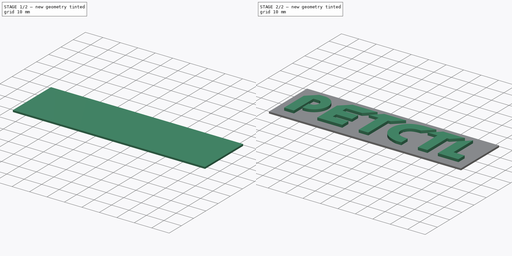
[diagram: build sequence overview — one tinted view per stage of 2, left to right]
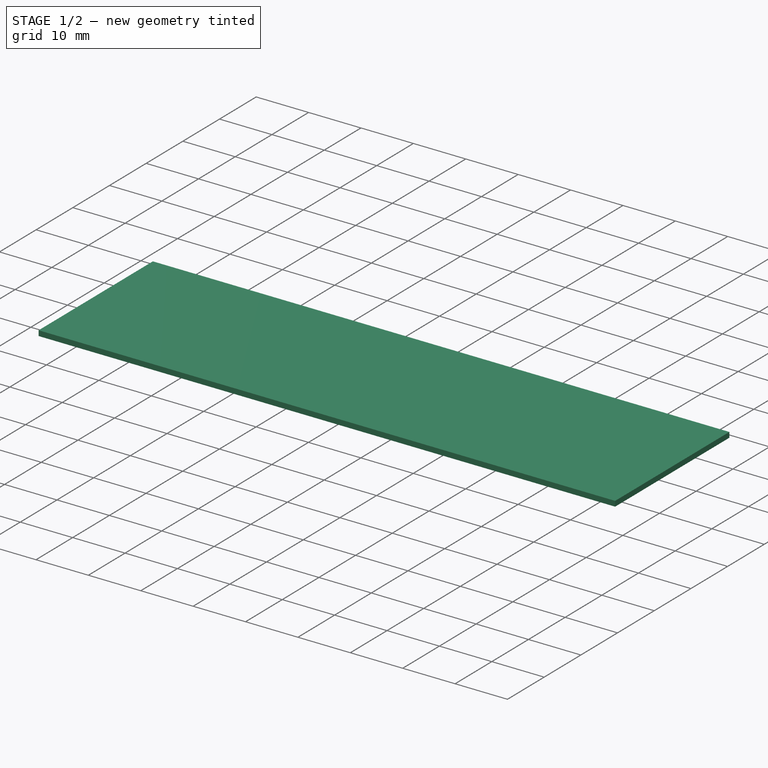
[diagram: stage 1 of 2 — iso view after this stage's code; geometry added in this stage tinted green]
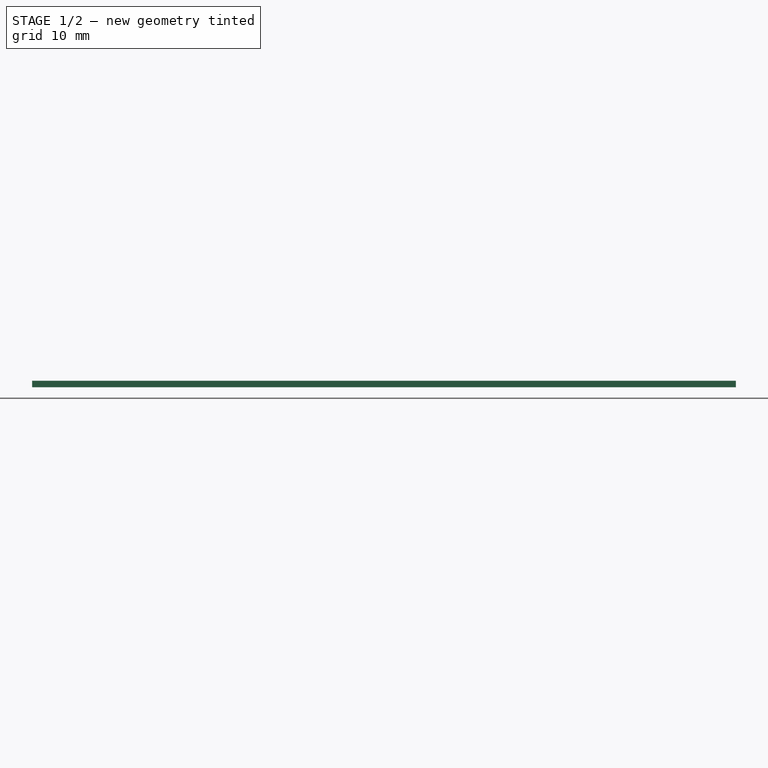
[diagram: stage 1 of 2 — front view after this stage's code; geometry added in this stage tinted green]
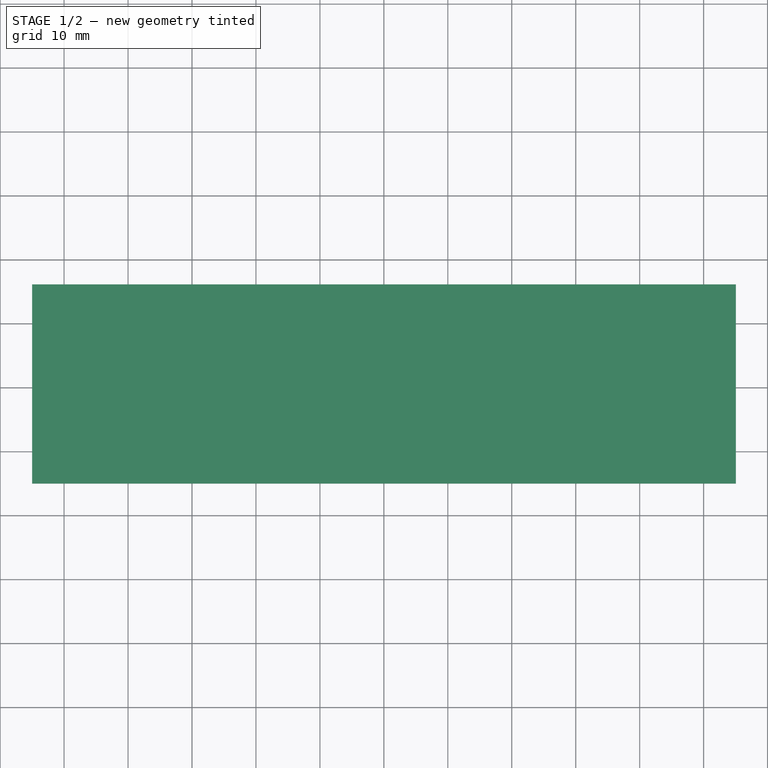
[diagram: stage 1 of 2 — top view after this stage's code; geometry added in this stage tinted green]
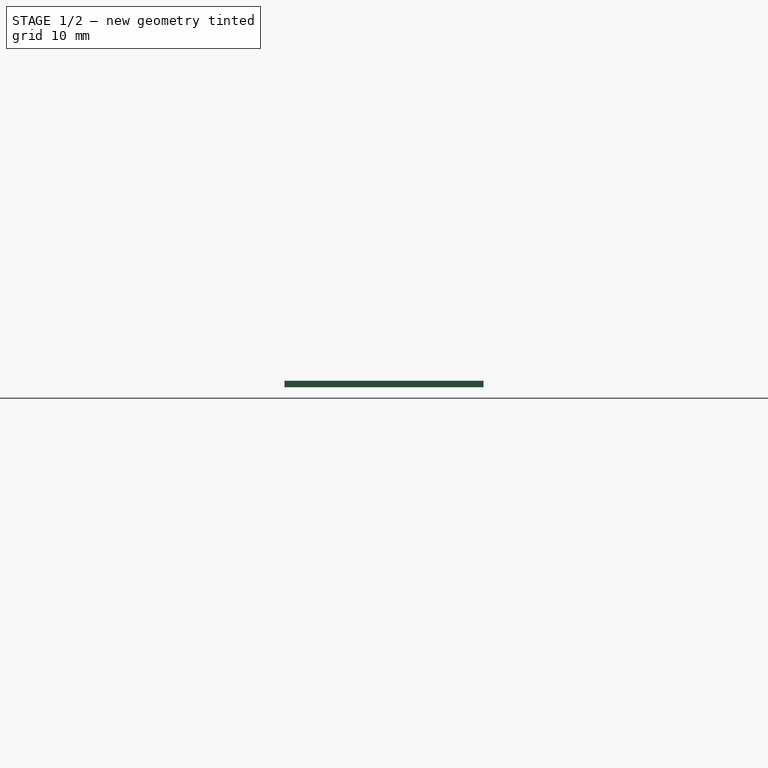
[diagram: stage 1 of 2 — right view after this stage's code; geometry added in this stage tinted green]
FCSTD DOCUMENT  (FreeCAD 0.19R24291 (Git))
Label: PETCTL_logo_V1
License: All rights reserved
LicenseURL: http://en.wikipedia.org/wiki/All_rights_reserved
objects: Sketcher::SketchObject×2, PartDesign::Pad×2, Image::ImagePlane×1, PartDesign::Body×1, App::Part×1, Part::Part2DObjectPython×1
note: 8 computed .brp shape members not serialized (recipe doc carries the construction recipe); baked Part::Feature solids carry a one-line shape summary decoded from their .brp

FEATURE [Image::ImagePlane] ImagePlane
  Placement = pos=(49.5,10.5,0) rot=(0,0,1;0rad)
  XSize = 277.923
  YSize = 63.364
FEATURE [Sketcher::SketchObject] Sketch001
  AttachmentOffset = pos=(0,0,1) rot=(0,0,1;0rad)
  FullyConstrained = false
  MapMode = 5
  Placement = pos=(0,0,1) rot=(0,0,1;0rad)
  Support = -> [XY_Plane001]
  sketch-geometry (74):
    g0: GeomPoint X=0 Y=0 Z=0
    g1: ArcOfCircle CenterX=8.2048 CenterY=13.1466 CenterZ=0 NormalX=0 NormalY=0 NormalZ=1 AngleXU=0 Radius=8.06343 StartAngle=4.57072 EndAngle=7.71396
    g2: ArcOfCircle CenterX=8.2048 CenterY=13.1466 CenterZ=0 NormalX=0 NormalY=0 NormalZ=1 AngleXU=0 Radius=2.94935 StartAngle=5.00314 EndAngle=7.62012
    g3-g8: Circle x6 (B-spline internal-alignment scaffolding for g9; pole/knot coordinates omitted)
    g9: BSplineCurve PolesCount=6 KnotsCount=4 Degree=3 IsPeriodic=0
    g10-g13: GeomPoint x4 (B-spline internal-alignment scaffolding for g9; pole/knot coordinates omitted)
    g14: LineSegment StartX=9.3302 StartY=21.1311 StartZ=0 EndX=5.60816 EndY=21.1311 EndZ=0
    g15: LineSegment StartX=5.60816 StartY=21.1311 StartZ=0 EndX=0.205283 EndY=16.0811 EndZ=0
    g16: LineSegment StartX=0.205283 StartY=16.0811 StartZ=0 EndX=0.205283 EndY=0 EndZ=0
    g17: LineSegment StartX=0.205283 StartY=0 StartZ=0 EndX=5.80959 EndY=0 EndZ=0
    g18: LineSegment StartX=5.80959 StartY=0 StartZ=0 EndX=5.80959 EndY=16.0157 EndZ=0
    g19: LineSegment StartX=5.80959 StartY=16.0157 StartZ=0 EndX=8.88828 EndY=16.0157 EndZ=0
    g20: LineSegment StartX=9.05029 StartY=10.3211 StartZ=0 EndX=7.06632 EndY=10.3211 EndZ=0
    g21: LineSegment StartX=7.06632 StartY=10.3211 StartZ=0 EndX=7.06632 EndY=5.16398 EndZ=0
    g22: LineSegment StartX=38.9504 StartY=21.1242 StartZ=0 EndX=24.6208 EndY=21.1242 EndZ=0
    g23: LineSegment StartX=24.6208 StartY=21.1242 StartZ=0 EndX=19.2179 EndY=16.0742 EndZ=0
    g24: LineSegment StartX=19.2179 StartY=16.0742 StartZ=0 EndX=19.2179 EndY=0 EndZ=0
    g25: LineSegment StartX=19.2179 StartY=0 StartZ=0 EndX=33.5071 EndY=0 EndZ=0
    g26: LineSegment StartX=33.5071 StartY=0 StartZ=0 EndX=33.5071 EndY=5.05 EndZ=0
    g27: LineSegment StartX=33.5071 StartY=5.05 StartZ=0 EndX=24.5376 EndY=5.05 EndZ=0
    g28: LineSegment StartX=24.5376 StartY=5.05 StartZ=0 EndX=24.5376 EndY=7.97826 EndZ=0
    g29: LineSegment StartX=24.5376 StartY=7.97826 StartZ=0 EndX=33.5071 EndY=7.97826 EndZ=0
    g30: LineSegment StartX=33.5071 StartY=7.97826 StartZ=0 EndX=33.5071 EndY=13.0283 EndZ=0
    g31: LineSegment StartX=33.5071 StartY=13.0283 StartZ=0 EndX=24.5376 EndY=13.0283 EndZ=0
    g32: LineSegment StartX=24.5376 StartY=13.0283 StartZ=0 EndX=24.5376 EndY=16.0742 EndZ=0
    g33: LineSegment StartX=24.5376 StartY=16.0742 StartZ=0 EndX=33.5475 EndY=16.0742 EndZ=0
    g34: LineSegment StartX=33.5475 StartY=16.0742 StartZ=0 EndX=38.9504 EndY=21.1242 EndZ=0
    g35: LineSegment StartX=37.2845 StartY=16.2327 StartZ=0 EndX=42.9356 EndY=16.2327 EndZ=0
    g36: LineSegment StartX=42.9356 StartY=16.2327 StartZ=0 EndX=42.9356 EndY=0 EndZ=0
    g37: LineSegment StartX=42.9356 StartY=0 StartZ=0 EndX=48.4163 EndY=0 EndZ=0
    g38: LineSegment StartX=48.4163 StartY=0 StartZ=0 EndX=48.4163 EndY=16.2327 EndZ=0
    g39: LineSegment StartX=48.4163 StartY=16.2327 StartZ=0 EndX=49.7514 EndY=16.2327 EndZ=0
    g40: LineSegment StartX=42.6874 StartY=21.2827 StartZ=0 EndX=55.1543 EndY=21.2827 EndZ=0
    g41: LineSegment StartX=42.6874 StartY=21.2827 StartZ=0 EndX=37.2845 EndY=16.2327 EndZ=0
    g42: LineSegment StartX=49.7514 StartY=16.2327 StartZ=0 EndX=55.1543 EndY=21.2827 EndZ=0
    g43: LineSegment StartX=72.7068 StartY=21.016 StartZ=0 EndX=65.6586 EndY=21.016 EndZ=0
    g44: LineSegment StartX=67.3635 StartY=5.13073 StartZ=0 EndX=67.3635 EndY=0 EndZ=0
    g45: LineSegment StartX=67.3635 StartY=0 StartZ=0 EndX=64.1185 EndY=0 EndZ=0
    g46-g52: Circle x7 (B-spline internal-alignment scaffolding for g53; pole/knot coordinates omitted)
    g53: BSplineCurve PolesCount=7 KnotsCount=5 Degree=3 IsPeriodic=0
    g54-g57: GeomPoint x4 (B-spline internal-alignment scaffolding for g53; pole/knot coordinates omitted)
    g58: GeomPoint X=64.4078 Y=0 Z=0
    g59: LineSegment StartX=67.3039 StartY=15.966 StartZ=0 EndX=72.7068 EndY=21.016 EndZ=0
    g60: LineSegment StartX=76.5743 StartY=21.0711 StartZ=0 EndX=71.1714 EndY=16.0211 EndZ=0
    g61: LineSegment StartX=71.1714 StartY=16.0211 StartZ=0 EndX=76.8224 EndY=16.0211 EndZ=0
    g62: LineSegment StartX=76.8224 StartY=16.0211 StartZ=0 EndX=76.8224 EndY=0 EndZ=0
    g63: LineSegment StartX=76.8224 StartY=0 StartZ=0 EndX=82.3031 EndY=0 EndZ=0
    g64: LineSegment StartX=82.3031 StartY=0 StartZ=0 EndX=82.3031 EndY=16.0211 EndZ=0
    g65: LineSegment StartX=82.3031 StartY=16.0211 StartZ=0 EndX=83.6382 EndY=16.0211 EndZ=0
    g66: LineSegment StartX=83.6382 StartY=16.0211 StartZ=0 EndX=89.0411 EndY=21.0711 EndZ=0
    g67: LineSegment StartX=89.0411 StartY=21.0711 StartZ=0 EndX=76.5743 EndY=21.0711 EndZ=0
    g68: LineSegment StartX=88.2474 StartY=16.0264 StartZ=0 EndX=93.6502 EndY=21.0764 EndZ=0
    g69: LineSegment StartX=93.6502 StartY=21.0764 StartZ=0 EndX=93.6823 EndY=5.09016 EndZ=0
    g70: LineSegment StartX=93.6823 StartY=5.09016 StartZ=0 EndX=100.043 EndY=5.09016 EndZ=0
    g71: LineSegment StartX=100.043 StartY=5.09016 StartZ=0 EndX=100.043 EndY=0 EndZ=0
    g72: LineSegment StartX=100.043 StartY=0 StartZ=0 EndX=88.2474 EndY=0 EndZ=0
    g73: LineSegment StartX=88.2474 StartY=0 StartZ=0 EndX=88.2474 EndY=16.0264 EndZ=0
  constraints (128):
    c: Coincident(g0,g-1)
    c: Weight(g3) = 1
    c: Equal(g3, g4-g8) x5
    c: InternalAlignment(g3-g8 -> g9) x6
    c: InternalAlignment(g10-g13 -> g9) x4
    c: Coincident(g14,g1)
    c: Horizontal(g14)
    c: Coincident(g15,g14)
    c: Coincident(g16,g15)
    c: Vertical(g16)
    c: Coincident(g17,g16)
    c: PointOnObject(g17,g-1)
    c: Horizontal(g17)
    c: Coincident(g18,g17)
    c: Vertical(g18)
    c: Coincident(g19,g18)
    c: Horizontal(g19)
    c: Coincident(g2,g19)
    c: Coincident(g20,g2)
    c: Horizontal(g20)
    c: Coincident(g21,g20)
    c: Coincident(g21,g1)
    c: Vertical(g21)
    c: Coincident(g2,g1)
    c: Horizontal(g22)
    c: Coincident(g23,g22)
    c: Coincident(g24,g23)
    c: Vertical(g24)
    c: Coincident(g25,g24)
    c: PointOnObject(g25,g-1)
    c: Horizontal(g25)
    c: Coincident(g26,g25)
    c: Vertical(g26)
    c: Coincident(g27,g26)
    c: Horizontal(g27)
    c: Coincident(g28,g27)
    c: Vertical(g28)
    c: Coincident(g29,g28)
    c: Horizontal(g29)
    c: Coincident(g30,g29)
    c: Vertical(g30)
    c: Coincident(g31,g30)
    c: Horizontal(g31)
    c: Coincident(g32,g31)
    c: Vertical(g32)
    c: Coincident(g33,g32)
    c: Horizontal(g33)
    c: Coincident(g34,g33)
    c: Coincident(g34,g22)
    c: Horizontal(g35)
    c: Coincident(g36,g35)
    c: Vertical(g36)
    c: Coincident(g37,g36)
    c: PointOnObject(g37,g-1)
    c: Horizontal(g37)
    c: Coincident(g38,g37)
    c: Vertical(g38)
    c: Coincident(g39,g38)
    c: Horizontal(g39)
    c: Horizontal(g40)
    c: Coincident(g41,g40)
    c: Coincident(g41,g35)
    c: Coincident(g42,g39)
    c: Coincident(g42,g40)
    c: Horizontal(g43)
    c: Vertical(g44)
    c: Coincident(g45,g44)
    c: PointOnObject(g45,g-1)
    c: Horizontal(g45)
    c: Coincident(g53,g43)
    c: Weight(g46) = 1
    c: Equal(g46, g47-g52) x6
    c: Coincident(g53,g45)
    c: InternalAlignment(g46-g52 -> g53) x7
    c: InternalAlignment(g54-g57 -> g53) x4
    c: Horizontal(g61)
    c: Coincident(g62,g61)
    c: PointOnObject(g62,g-1)
    c: Vertical(g62)
    c: Coincident(g63,g62)
    c: PointOnObject(g63,g-1)
    c: Coincident(g64,g63)
    c: Vertical(g64)
    c: Coincident(g65,g64)
    c: Horizontal(g65)
    c: Coincident(g66,g65)
    c: Coincident(g67,g66)
    c: Coincident(g67,g60)
    c: Horizontal(g67)
    c: Coincident(g69,g68)
    c: Coincident(g70,g69)
    c: Horizontal(g70)
    c: Coincident(g71,g70)
    c: PointOnObject(g71,g-1)
    c: Vertical(g71)
    c: Coincident(g72,g71)
    c: PointOnObject(g72,g-1)
    c: Coincident(g73,g72)
    c: Coincident(g73,g68)
    c: Vertical(g73)
    c: Coincident(g59,g9)
    c: Coincident(g60,g61)
    c: Coincident(g43,g59)
    c: Coincident(g44,g9)
    c: Parallel(g59,g60)
    c: Parallel(g68,g66)
    c: Parallel(g42,g59)
    c: Parallel(g41,g42)
    c: Parallel(g34,g41)
    c: Parallel(g23,g34)
    c: Parallel(g23,g15)
    c: Equal(g37,g63)
    c: Equal(g40,g67)
    c: Equal(g65,g39)
    c: Equal(g61,g35)
    c: Equal(g34,g41)
    c: Equal(g41,g42)
    c: Equal(g42,g59)
    c: Equal(g59,g60)
    c: Equal(g60,g66)
    c: Equal(g66,g68)
    c: Equal(g68,g23)
    c: Equal(g23,g15)
    c: Equal(g26,g30)
    c: Distance(g33,g22) = 5.05
    c: Distance(g30) = 5.05
    c: Equal(g29,g31)
    c: Equal(g31,g27)
FEATURE [Sketcher::SketchObject] Sketch
  ExternalGeometry = -> [Sketch001]
  FullyConstrained = true
  MapMode = 5
  Support = -> [XY_Plane001]
  sketch-geometry (4):
    g0: LineSegment StartX=-5 StartY=26.13 StartZ=0 EndX=105.04 EndY=26.13 EndZ=0
    g1: LineSegment StartX=105.04 StartY=26.13 StartZ=0 EndX=105.04 EndY=-5 EndZ=0
    g2: LineSegment StartX=105.04 StartY=-5 StartZ=0 EndX=-5 EndY=-5 EndZ=0
    g3: LineSegment StartX=-5 StartY=-5 StartZ=0 EndX=-5 EndY=26.13 EndZ=0
  constraints (12):
    c: Coincident(g0,g1)
    c: Coincident(g1,g2)
    c: Coincident(g2,g3)
    c: Coincident(g3,g0)
    c: Horizontal(g0)
    c: Horizontal(g2)
    c: Vertical(g1)
    c: Vertical(g3)
    c: DistanceX(g-2,g2) = -5
    c: DistanceY(g-1,g2) = -5
    c: Distance(g3) = 31.13
    c: Distance(g2) = 110.04
FEATURE [PartDesign::Pad] Pad
  Direction = (1,1,1)
  Length = 1
  Length2 = 100
  Profile = -> Sketch
  Type = 0
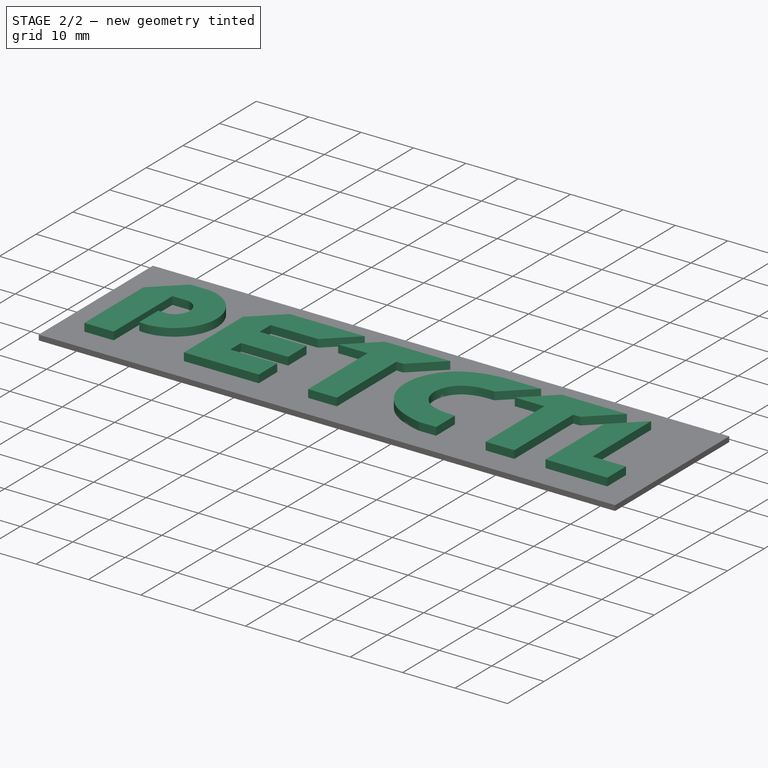
[diagram: stage 2 of 2 — iso view after this stage's code; geometry added in this stage tinted green]
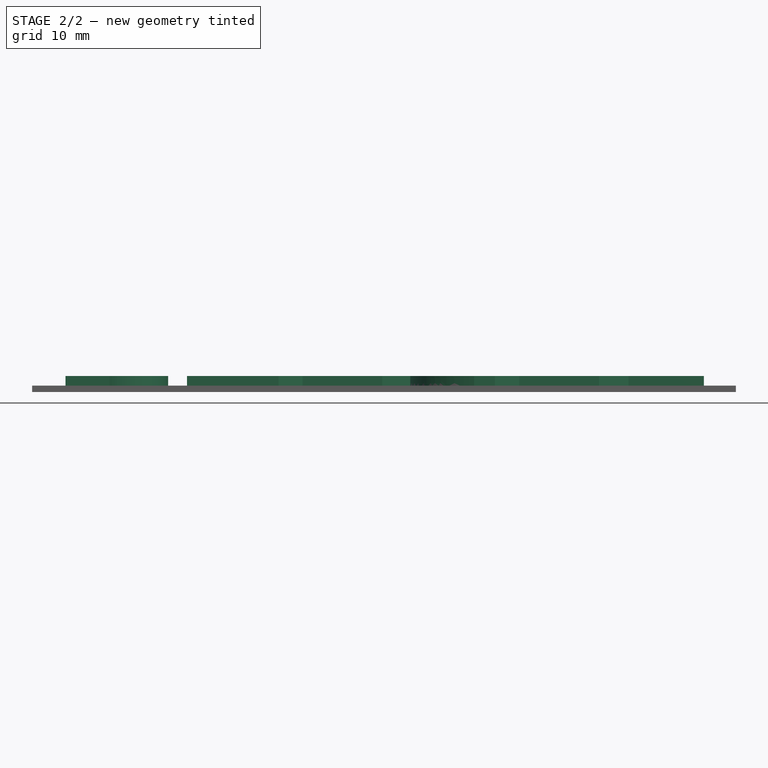
[diagram: stage 2 of 2 — front view after this stage's code; geometry added in this stage tinted green]
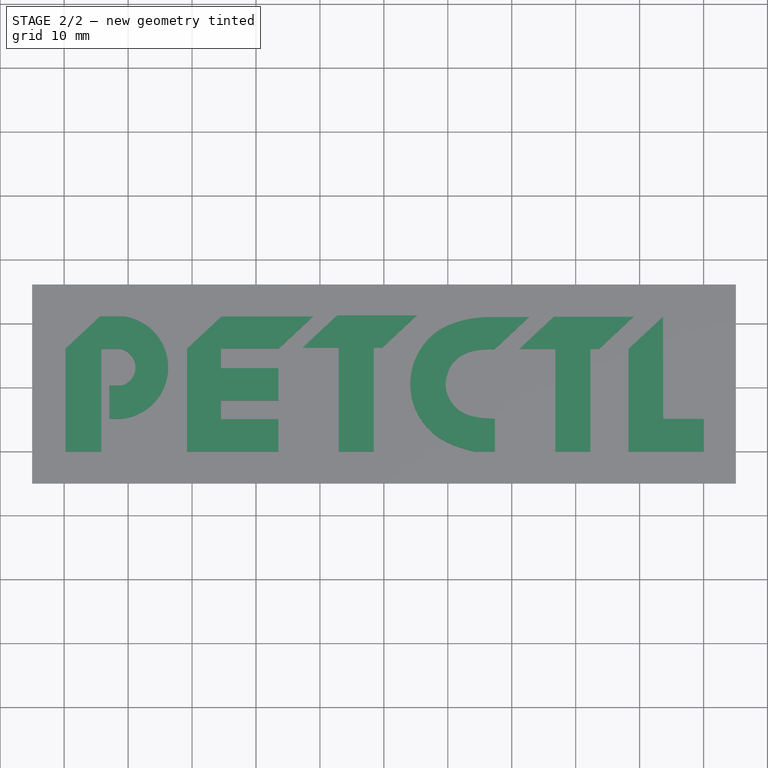
[diagram: stage 2 of 2 — top view after this stage's code; geometry added in this stage tinted green]
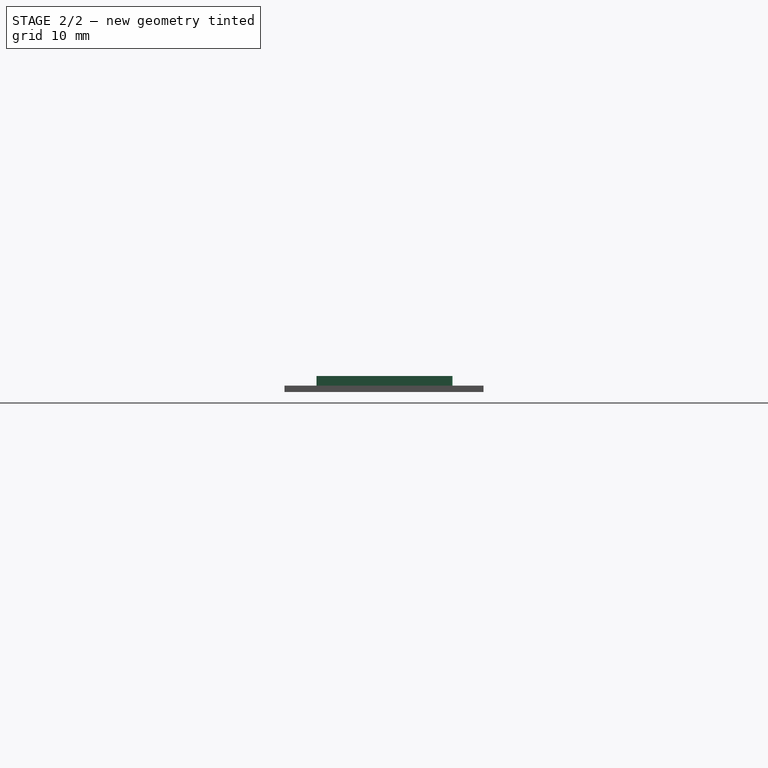
[diagram: stage 2 of 2 — right view after this stage's code; geometry added in this stage tinted green]
FEATURE [PartDesign::Pad] Pad001
  BaseFeature = -> Pad
  Direction = (1,1,1)
  Length = 1.5
  Length2 = 100
  Profile = -> Sketch001
  Type = 0
FEATURE [PartDesign::Body] Body
  Group = -> [Sketch001,Sketch,Pad,Pad001]
  Origin = -> Origin001
  Tip = -> Pad001
FEATURE [App::Part] Part
  Group = -> [Body]
  Origin = -> Origin
FEATURE [Part::Part2DObjectPython] Shape2DView  # Draft 2D object (typed FeaturePython)
  Base = -> Sketch001
  FuseArch = false
  HiddenLines = false
  InPlace = true
  Projection = (-0.400917,-0.393244,0.827421)
  ProjectionMode = 0
  SegmentLength = 0.05
  Tessellation = false
  VisibleOnly = false
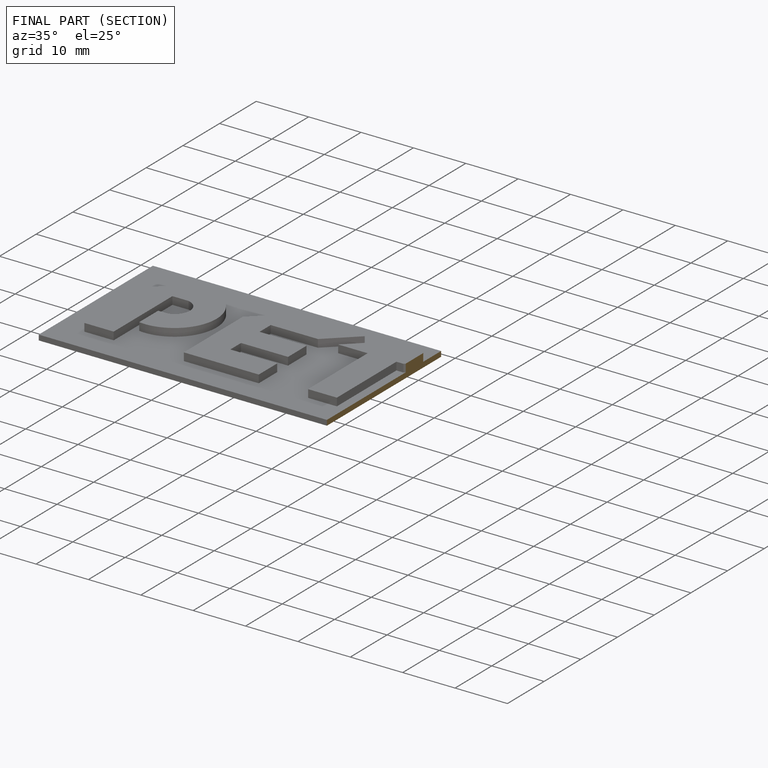
[diagram: finished part — half-section view (interior)]
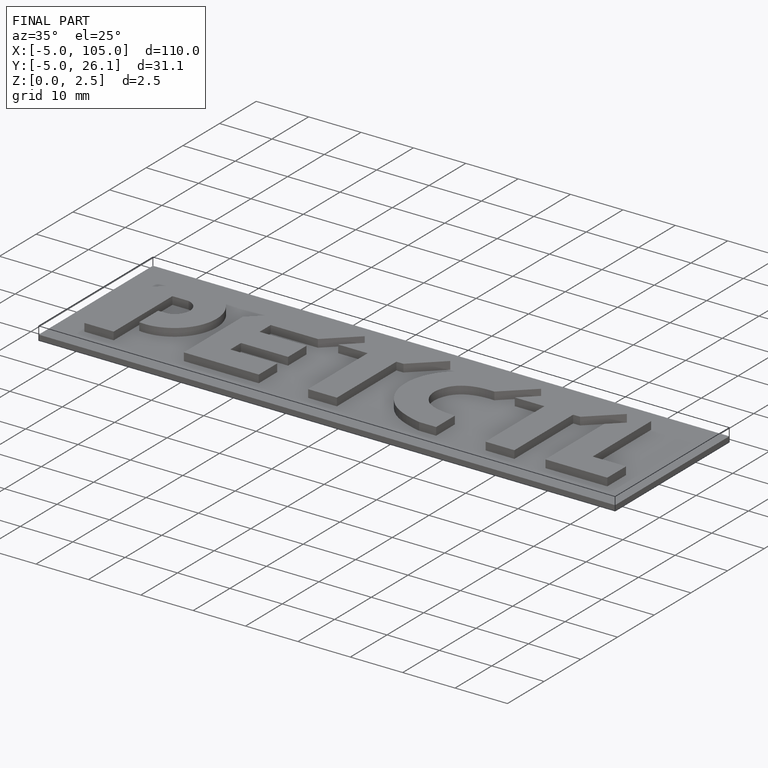
[diagram: finished part — iso view with bounding-box wireframe]
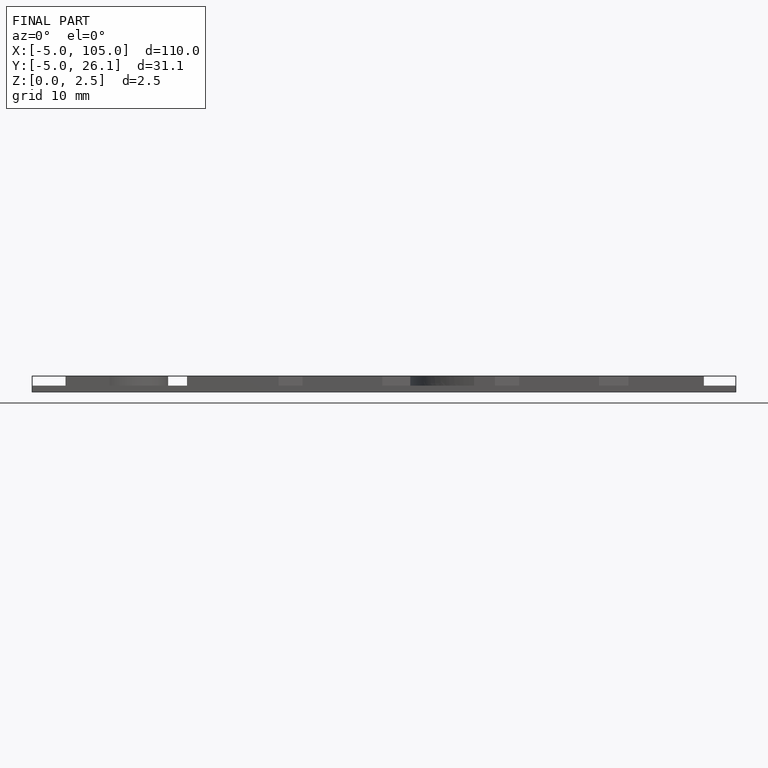
[diagram: finished part — front view with bounding-box wireframe]
